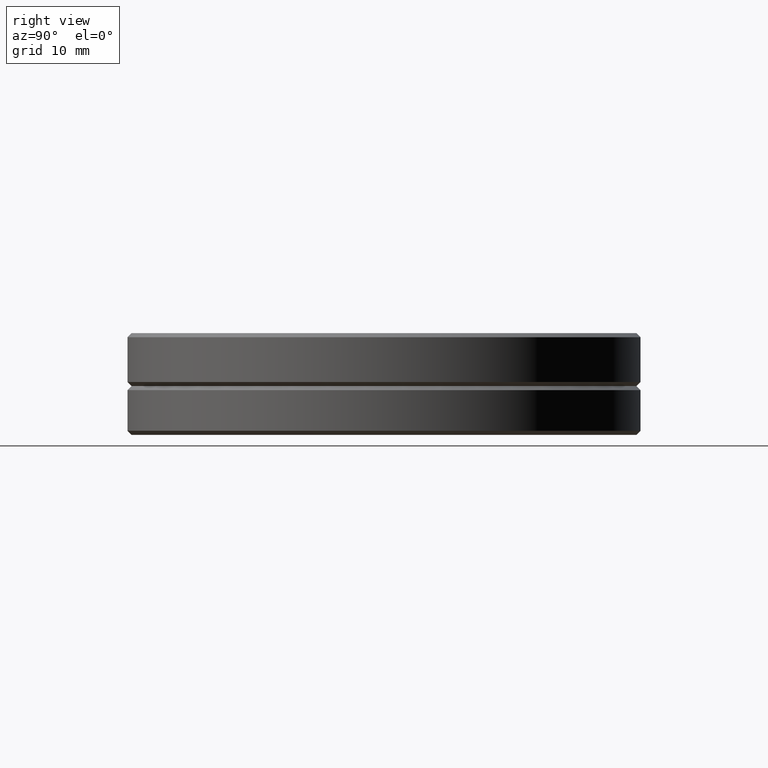
[diagram: clean part render]
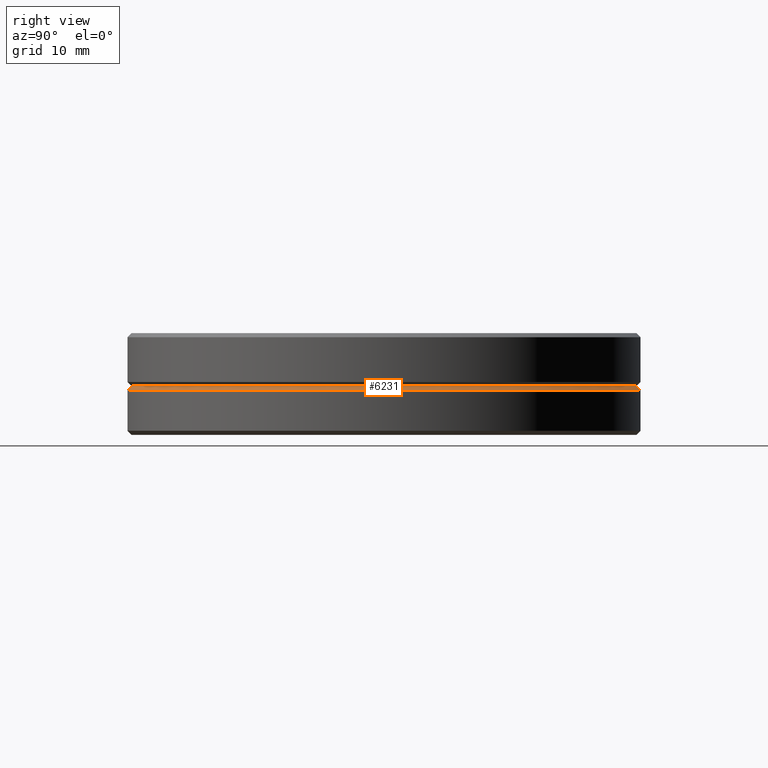
[diagram: same view with one face highlighted and labeled with its STEP entity id]
A machine part, right view. The second image highlights one B-rep face of the part: STEP entity #6231.
In plain terms, the highlighted conical surface has half-angle 45 deg.
Its self-contained STEP definition (entity closure, byte-faithful):
#150 = ORIENTED_EDGE ( 'NONE', *, *, #2688, .T. ) ;
#551 = VERTEX_POINT ( 'NONE', #2058 ) ;
#979 = CARTESIAN_POINT ( 'NONE',  ( 2.821254875430651923E-13, 31.00000000000006040, 5.129837297096589473E-14 ) ) ;
#1008 = CARTESIAN_POINT ( 'NONE',  ( -8.267222335452903816E-15, -2.122461707323547068E-15, 0.0000000000000000000 ) ) ;
#1067 = DIRECTION ( 'NONE',  ( 9.367506770274758310E-15, 1.000000000000000000, 1.654786224869864086E-15 ) ) ;
#1173 = VERTEX_POINT ( 'NONE', #2572 ) ;
#1438 = VERTEX_POINT ( 'NONE', #4866 ) ;
#2058 = CARTESIAN_POINT ( 'NONE',  ( -2.969658453334543374E-13, -31.00000000000001776, -5.129837297096606513E-14 ) ) ;
#2072 = EDGE_CURVE ( 'NONE', #551, #1173, #4684, .T. ) ;
#2572 = CARTESIAN_POINT ( 'NONE',  ( 2.846763065613837133E-13, 31.00000000000001066, 5.129837297096606513E-14 ) ) ;
#2688 = EDGE_CURVE ( 'NONE', #551, #2833, #4941, .T. ) ;
#2777 = CARTESIAN_POINT ( 'NONE',  ( -2.948635271366142703E-13, -31.00000000000006395, -5.129837297096588842E-14 ) ) ;
#2833 = VERTEX_POINT ( 'NONE', #5507 ) ;
#2881 = DIRECTION ( 'NONE',  ( -5.946253812790204218E-15, -0.7071067811865469066, -0.7071067811865482389 ) ) ;
#2988 = VECTOR ( 'NONE', #2881, 1000.000000000000000 ) ;
#3007 = LINE ( 'NONE', #979, #3648 ) ;
#3075 = EDGE_LOOP ( 'NONE', ( #4436, #150, #4490, #6032 ) ) ;
#3096 = CARTESIAN_POINT ( 'NONE',  ( -8.267222335452903816E-15, -2.122461707323547068E-15, 0.0000000000000000000 ) ) ;
#3205 = EDGE_CURVE ( 'NONE', #1173, #1438, #3007, .T. ) ;
#3298 = CIRCLE ( 'NONE', #5771, 31.50000000000004974 ) ;
#3606 = AXIS2_PLACEMENT_3D ( 'NONE', #1008, #5243, #6290 ) ;
#3648 = VECTOR ( 'NONE', #3982, 1000.000000000000114 ) ;
#3772 = FACE_OUTER_BOUND ( 'NONE', #3075, .T. ) ;
#3982 = DIRECTION ( 'NONE',  ( 7.214805701730610322E-15, 0.7071067811865492381, -0.7071067811865457964 ) ) ;
#4436 = ORIENTED_EDGE ( 'NONE', *, *, #2072, .F. ) ;
#4490 = ORIENTED_EDGE ( 'NONE', *, *, #6350, .F. ) ;
#4684 = CIRCLE ( 'NONE', #3606, 31.00000000000006395 ) ;
#4866 = CARTESIAN_POINT ( 'NONE',  ( 2.893165488372000938E-13, 31.50000000000000000, -0.4999999999999344413 ) ) ;
#4941 = LINE ( 'NONE', #2777, #2988 ) ;
#5153 = DIRECTION ( 'NONE',  ( 8.357693029993984519E-16, 1.654786224869864480E-15, -1.000000000000000000 ) ) ;
#5234 = CONICAL_SURFACE ( 'NONE', #6427, 31.00000000000006395, 0.7853981633974482790 ) ;
#5243 = DIRECTION ( 'NONE',  ( -8.357693029993984519E-16, -1.654786224869864480E-15, 1.000000000000000000 ) ) ;
#5484 = DIRECTION ( 'NONE',  ( 8.357693029993984519E-16, 1.654786224869864480E-15, -1.000000000000000000 ) ) ;
#5507 = CARTESIAN_POINT ( 'NONE',  ( -2.969787402727955857E-13, -31.50000000000000000, -0.5000000000000387468 ) ) ;
#5546 = CARTESIAN_POINT ( 'NONE',  ( -7.849337683953217360E-15, -1.295068594888644805E-15, -0.4999999999999865663 ) ) ;
#5771 = AXIS2_PLACEMENT_3D ( 'NONE', #5546, #5484, #6573 ) ;
#6032 = ORIENTED_EDGE ( 'NONE', *, *, #3205, .F. ) ;
#6231 = ADVANCED_FACE ( 'NONE', ( #3772 ), #5234, .T. ) ;
#6290 = DIRECTION ( 'NONE',  ( -9.367506770274758310E-15, -1.000000000000000000, -1.654786224869864086E-15 ) ) ;
#6350 = EDGE_CURVE ( 'NONE', #1438, #2833, #3298, .T. ) ;
#6427 = AXIS2_PLACEMENT_3D ( 'NONE', #3096, #5153, #1067 ) ;
#6573 = DIRECTION ( 'NONE',  ( -9.367506770274759888E-15, -1.000000000000000000, -1.655559507827069142E-15 ) ) ;